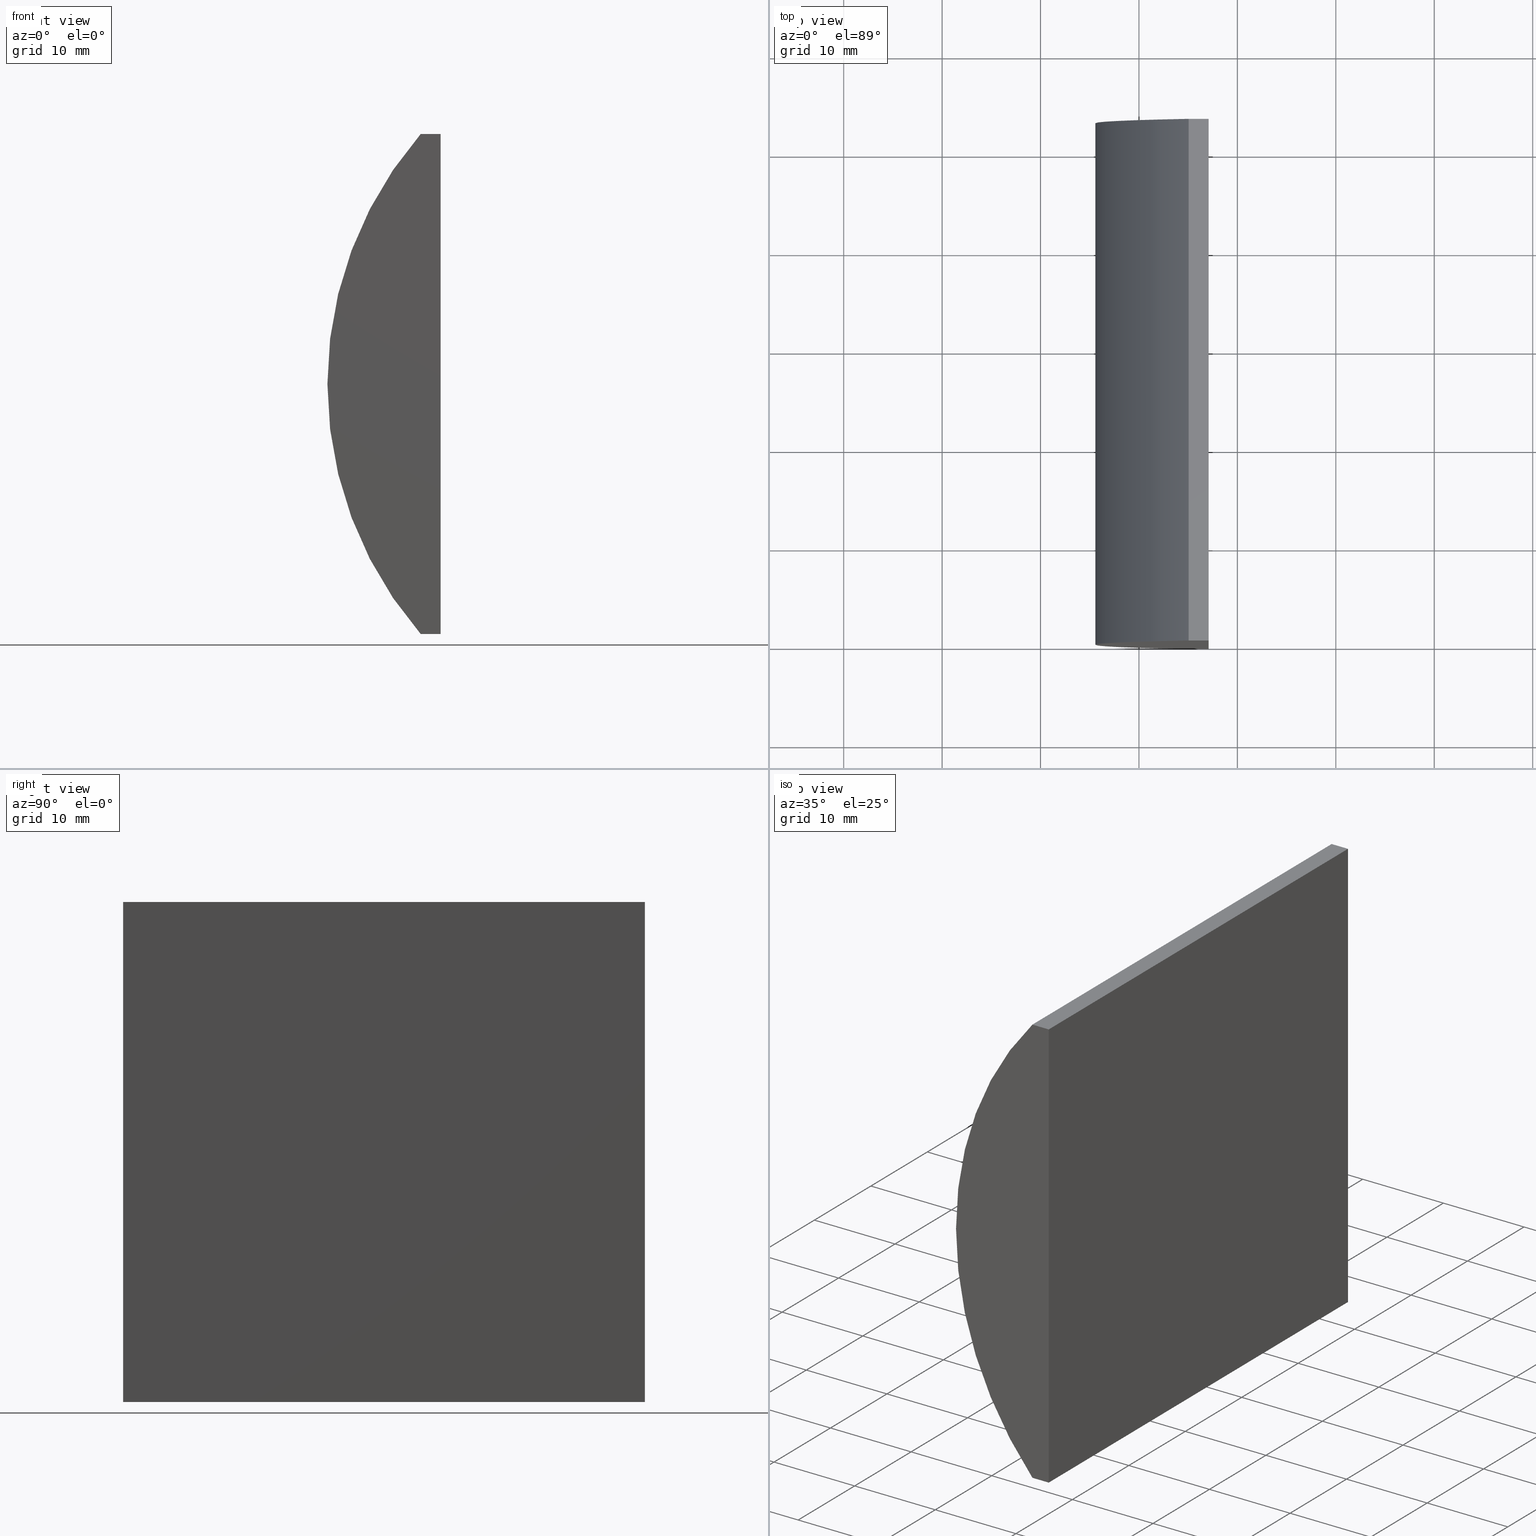
[diagram: canonical four-view strip — front | top / right | iso, engineering-drawing reading convention]
A machine part, canonical four-view strip (front | top / right | iso — engineering-drawing reading convention). The complete STEP part file that produces these views, byte-faithful:
ISO-10303-21;
HEADER;
FILE_DESCRIPTION (( 'STEP AP214' ),
    '1' );
FILE_NAME ('155057.STEP',
    '2019-06-18T07:23:28',
    ( 'user' ),
    ( '΢���й�' ),
    'SwSTEP 2.0',
    'SolidWorks 2016',
    '' );
FILE_SCHEMA (( 'AUTOMOTIVE_DESIGN' ));
ENDSEC;

DATA;
#1 = CARTESIAN_POINT ( 'NONE',  ( 4.355204334851265500, 53.00000000000000000, 4.286263797015675000E-017 ) ) ;
#2 = VECTOR ( 'NONE', #8, 1000.000000000000000 ) ;
#3 = ORIENTED_EDGE ( 'NONE', *, *, #160, .T. ) ;
#4 = VERTEX_POINT ( 'NONE', #166 ) ;
#5 = EDGE_CURVE ( 'NONE', #62, #157, #69, .T. ) ;
#6 =( NAMED_UNIT ( * ) PLANE_ANGLE_UNIT ( ) SI_UNIT ( $, .RADIAN. ) );
#7 = ADVANCED_FACE ( 'NONE', ( #42 ), #33, .F. ) ;
#8 = DIRECTION ( 'NONE',  ( -0.0000000000000000000, -1.000000000000000000, -0.0000000000000000000 ) ) ;
#9 = VERTEX_POINT ( 'NONE', #32 ) ;
#10 = PRESENTATION_LAYER_ASSIGNMENT (  '', '', ( #190 ) ) ;
#11 = CARTESIAN_POINT ( 'NONE',  ( -22.92479566514874600, 53.00000000000000000, -25.39999999999999900 ) ) ;
#12 = VERTEX_POINT ( 'NONE', #38 ) ;
#13 = ORIENTED_EDGE ( 'NONE', *, *, #153, .F. ) ;
#14 = CARTESIAN_POINT ( 'NONE',  ( 4.355204334851265500, 53.00000000000000000, 4.286263797015675000E-017 ) ) ;
#15 = CARTESIAN_POINT ( 'NONE',  ( -24.94886364213786900, 53.00000000000000000, -25.39999999999999900 ) ) ;
#16 = SURFACE_SIDE_STYLE ('',( #149 ) ) ;
#17 = CARTESIAN_POINT ( 'NONE',  ( -24.94886364213786900, 53.00000000000000000, -25.39999999999999900 ) ) ;
#18 = ORIENTED_EDGE ( 'NONE', *, *, #74, .T. ) ;
#19 = AXIS2_PLACEMENT_3D ( 'NONE', #14, #112, #187 ) ;
#20 = VECTOR ( 'NONE', #200, 1000.000000000000000 ) ;
#21 = ORIENTED_EDGE ( 'NONE', *, *, #64, .T. ) ;
#22 = ADVANCED_FACE ( 'NONE', ( #58 ), #141, .F. ) ;
#23 = EDGE_CURVE ( 'NONE', #12, #4, #70, .T. ) ;
#24 = STYLED_ITEM ( 'NONE', ( #132 ), #192 ) ;
#25 = VERTEX_POINT ( 'NONE', #133 ) ;
#26 = LINE ( 'NONE', #96, #186 ) ;
#27 = EDGE_CURVE ( 'NONE', #168, #174, #76, .T. ) ;
#28 = FILL_AREA_STYLE ('',( #39 ) ) ;
#29 = CARTESIAN_POINT ( 'NONE',  ( -24.94886364213786900, 53.00000000000000000, 25.39999999999999900 ) ) ;
#30 = VECTOR ( 'NONE', #164, 1000.000000000000000 ) ;
#31 = VECTOR ( 'NONE', #183, 1000.000000000000000 ) ;
#32 = CARTESIAN_POINT ( 'NONE',  ( -24.94886364213786900, 53.00000000000000000, 25.39999999999999900 ) ) ;
#33 = PLANE ( 'NONE',  #51 ) ;
#34 = DIRECTION ( 'NONE',  ( 1.000000000000000000, 0.0000000000000000000, -0.0000000000000000000 ) ) ;
#35 = EDGE_LOOP ( 'NONE', ( #18, #177, #201, #21 ) ) ;
#36 = PLANE ( 'NONE',  #19 ) ;
#37 = APPLICATION_PROTOCOL_DEFINITION ( 'draft international standard', 'automotive_design', 1998, #182 ) ;
#38 = CARTESIAN_POINT ( 'NONE',  ( -22.92479566514873200, 53.00000000000000000, 25.39999999999999900 ) ) ;
#39 = FILL_AREA_STYLE_COLOUR ( '', #67 ) ;
#40 = SHAPE_DEFINITION_REPRESENTATION ( #158, #192 ) ;
#41 = CARTESIAN_POINT ( 'NONE',  ( -24.94886364213786900, 0.0000000000000000000, -25.39999999999999900 ) ) ;
#42 = FACE_OUTER_BOUND ( 'NONE', #66, .T. ) ;
#43 = DIRECTION ( 'NONE',  ( -1.000000000000000000, -0.0000000000000000000, -0.0000000000000000000 ) ) ;
#44 = DIRECTION ( 'NONE',  ( 2.731847993664263200E-016, 0.0000000000000000000, 1.000000000000000000 ) ) ;
#45 = SURFACE_SIDE_STYLE ('',( #142 ) ) ;
#46 = CARTESIAN_POINT ( 'NONE',  ( 4.355204334851265500, 0.0000000000000000000, 4.286263797015675000E-017 ) ) ;
#47 = CARTESIAN_POINT ( 'NONE',  ( -24.94886364213786900, 53.00000000000000000, 25.39999999999999900 ) ) ;
#48 = ORIENTED_EDGE ( 'NONE', *, *, #81, .F. ) ;
#49 = AXIS2_PLACEMENT_3D ( 'NONE', #17, #52, #34 ) ;
#50 = FILL_AREA_STYLE ('',( #109 ) ) ;
#51 = AXIS2_PLACEMENT_3D ( 'NONE', #184, #127, #179 ) ;
#52 = DIRECTION ( 'NONE',  ( 0.0000000000000000000, 0.0000000000000000000, 1.000000000000000000 ) ) ;
#53 = CARTESIAN_POINT ( 'NONE',  ( -24.94886364213786900, 0.0000000000000000000, 25.39999999999999900 ) ) ;
#54 = LINE ( 'NONE', #185, #31 ) ;
#55 = ORIENTED_EDGE ( 'NONE', *, *, #64, .F. ) ;
#56 = UNCERTAINTY_MEASURE_WITH_UNIT (LENGTH_MEASURE( 1.000000000000000100E-005 ), #162, 'distance_accuracy_value', 'NONE');
#57 = EDGE_LOOP ( 'NONE', ( #59, #138, #147, #125 ) ) ;
#58 = FACE_OUTER_BOUND ( 'NONE', #35, .T. ) ;
#59 = ORIENTED_EDGE ( 'NONE', *, *, #106, .T. ) ;
#60 = EDGE_LOOP ( 'NONE', ( #3, #159, #61, #188 ) ) ;
#61 = ORIENTED_EDGE ( 'NONE', *, *, #136, .F. ) ;
#62 = VERTEX_POINT ( 'NONE', #80 ) ;
#63 = VECTOR ( 'NONE', #115, 1000.000000000000000 ) ;
#64 = EDGE_CURVE ( 'NONE', #9, #174, #88, .T. ) ;
#65 = LINE ( 'NONE', #148, #92 ) ;
#66 = EDGE_LOOP ( 'NONE', ( #129, #48, #139, #198 ) ) ;
#67 = COLOUR_RGB ( '',1.000000000000000000, 1.000000000000000000, 1.000000000000000000 ) ;
#68 = ORIENTED_EDGE ( 'NONE', *, *, #27, .T. ) ;
#69 = LINE ( 'NONE', #71, #20 ) ;
#70 = LINE ( 'NONE', #108, #63 ) ;
#71 = CARTESIAN_POINT ( 'NONE',  ( -24.94886364213786900, 53.00000000000000000, -25.39999999999999900 ) ) ;
#72 =( NAMED_UNIT ( * ) PLANE_ANGLE_UNIT ( ) SI_UNIT ( $, .RADIAN. ) );
#73 = VECTOR ( 'NONE', #85, 1000.000000000000000 ) ;
#74 = EDGE_CURVE ( 'NONE', #174, #4, #54, .T. ) ;
#75 = PRESENTATION_LAYER_ASSIGNMENT (  '', '', ( #24 ) ) ;
#76 = CIRCLE ( 'NONE', #176, 38.78000000000000100 ) ;
#77 = PRODUCT_DEFINITION_FORMATION_WITH_SPECIFIED_SOURCE ( '�κ�', '', #155, .NOT_KNOWN. ) ;
#78 = UNCERTAINTY_MEASURE_WITH_UNIT (LENGTH_MEASURE( 1.000000000000000100E-005 ), #126, 'distance_accuracy_value', 'NONE');
#79 =( NAMED_UNIT ( * ) SI_UNIT ( $, .STERADIAN. ) SOLID_ANGLE_UNIT ( ) );
#80 = CARTESIAN_POINT ( 'NONE',  ( -22.92479566514874600, 53.00000000000000000, -25.39999999999999900 ) ) ;
#81 = EDGE_CURVE ( 'NONE', #25, #168, #65, .T. ) ;
#82 = DIRECTION ( 'NONE',  ( -0.0000000000000000000, -1.000000000000000000, -0.0000000000000000000 ) ) ;
#83 = EDGE_LOOP ( 'NONE', ( #175, #13, #194, #87 ) ) ;
#84 = CARTESIAN_POINT ( 'NONE',  ( -24.94886364213786900, 53.00000000000000000, -25.39999999999999900 ) ) ;
#85 = DIRECTION ( 'NONE',  ( 1.000000000000000000, 0.0000000000000000000, 0.0000000000000000000 ) ) ;
#86 = PLANE ( 'NONE',  #204 ) ;
#87 = ORIENTED_EDGE ( 'NONE', *, *, #120, .T. ) ;
#88 = LINE ( 'NONE', #29, #30 ) ;
#89 = VECTOR ( 'NONE', #140, 1000.000000000000000 ) ;
#90 =( GEOMETRIC_REPRESENTATION_CONTEXT ( 3 ) GLOBAL_UNCERTAINTY_ASSIGNED_CONTEXT ( ( #56 ) ) GLOBAL_UNIT_ASSIGNED_CONTEXT ( ( #162, #102, #203 ) ) REPRESENTATION_CONTEXT ( 'NONE', 'WORKASPACE' ) );
#91 = CYLINDRICAL_SURFACE ( 'NONE', #170, 38.78000000000000100 ) ;
#92 = VECTOR ( 'NONE', #43, 1000.000000000000000 ) ;
#93 = ADVANCED_FACE ( 'NONE', ( #172 ), #91, .T. ) ;
#94 = DIRECTION ( 'NONE',  ( -2.731847993664263200E-016, -0.0000000000000000000, -1.000000000000000000 ) ) ;
#95 = APPLICATION_CONTEXT ( 'automotive_design' ) ;
#96 = CARTESIAN_POINT ( 'NONE',  ( -22.92479566514874600, 0.0000000000000000000, -25.39999999999999900 ) ) ;
#97 = CLOSED_SHELL ( 'NONE', ( #93, #22, #181, #144, #165, #7 ) ) ;
#98 = APPLICATION_PROTOCOL_DEFINITION ( 'draft international standard', 'automotive_design', 1998, #95 ) ;
#99 = CARTESIAN_POINT ( 'NONE',  ( 0.0000000000000000000, 0.0000000000000000000, 0.0000000000000000000 ) ) ;
#100 = DIRECTION ( 'NONE',  ( 0.0000000000000000000, 1.000000000000000000, 0.0000000000000000000 ) ) ;
#101 = DIRECTION ( 'NONE',  ( -1.000000000000000000, 0.0000000000000000000, -0.0000000000000000000 ) ) ;
#102 =( NAMED_UNIT ( * ) PLANE_ANGLE_UNIT ( ) SI_UNIT ( $, .RADIAN. ) );
#103 = CIRCLE ( 'NONE', #117, 38.78000000000000100 ) ;
#104 = EDGE_CURVE ( 'NONE', #9, #12, #105, .T. ) ;
#105 = LINE ( 'NONE', #47, #73 ) ;
#106 = EDGE_CURVE ( 'NONE', #157, #9, #103, .T. ) ;
#107 = PRODUCT_RELATED_PRODUCT_CATEGORY ( 'part', '', ( #155 ) ) ;
#108 = CARTESIAN_POINT ( 'NONE',  ( -22.92479566514873200, 53.00000000000000000, 25.39999999999999900 ) ) ;
#109 = FILL_AREA_STYLE_COLOUR ( '', #197 ) ;
#110 = DIRECTION ( 'NONE',  ( 0.0000000000000000000, 0.0000000000000000000, 1.000000000000000000 ) ) ;
#111 = CARTESIAN_POINT ( 'NONE',  ( -22.92479566514874600, 53.00000000000000000, -25.39999999999999900 ) ) ;
#112 = DIRECTION ( 'NONE',  ( 0.0000000000000000000, 1.000000000000000000, 0.0000000000000000000 ) ) ;
#113 = SURFACE_STYLE_USAGE ( .BOTH. , #45 ) ;
#114 =( LENGTH_UNIT ( ) NAMED_UNIT ( * ) SI_UNIT ( .MILLI., .METRE. ) );
#115 = DIRECTION ( 'NONE',  ( -0.0000000000000000000, -1.000000000000000000, -0.0000000000000000000 ) ) ;
#116 = CARTESIAN_POINT ( 'NONE',  ( -24.94886364213786900, 53.00000000000000000, 25.39999999999999900 ) ) ;
#117 = AXIS2_PLACEMENT_3D ( 'NONE', #1, #161, #167 ) ;
#118 = MECHANICAL_DESIGN_GEOMETRIC_PRESENTATION_REPRESENTATION (  '', ( #24 ), #90 ) ;
#119 = LINE ( 'NONE', #111, #89 ) ;
#120 = EDGE_CURVE ( 'NONE', #62, #25, #119, .T. ) ;
#121 = PRODUCT_DEFINITION_CONTEXT ( 'detailed design', #95, 'design' ) ;
#122 = PRODUCT_CONTEXT ( 'NONE', #182, 'mechanical' ) ;
#123 = DIRECTION ( 'NONE',  ( 1.000000000000000000, 0.0000000000000000000, 0.0000000000000000000 ) ) ;
#124 = PLANE ( 'NONE',  #49 ) ;
#125 = ORIENTED_EDGE ( 'NONE', *, *, #5, .T. ) ;
#126 =( LENGTH_UNIT ( ) NAMED_UNIT ( * ) SI_UNIT ( .MILLI., .METRE. ) );
#127 = DIRECTION ( 'NONE',  ( 0.0000000000000000000, 1.000000000000000000, 0.0000000000000000000 ) ) ;
#128 = FACE_OUTER_BOUND ( 'NONE', #83, .T. ) ;
#129 = ORIENTED_EDGE ( 'NONE', *, *, #27, .F. ) ;
#130 =( NAMED_UNIT ( * ) SI_UNIT ( $, .STERADIAN. ) SOLID_ANGLE_UNIT ( ) );
#131 = VECTOR ( 'NONE', #94, 1000.000000000000000 ) ;
#132 = PRESENTATION_STYLE_ASSIGNMENT (( #113 ) ) ;
#133 = CARTESIAN_POINT ( 'NONE',  ( -22.92479566514874600, 0.0000000000000000000, -25.39999999999999900 ) ) ;
#134 = AXIS2_PLACEMENT_3D ( 'NONE', #116, #163, #101 ) ;
#135 = MANIFOLD_SOLID_BREP ( '͹̨-����1', #97 ) ;
#136 = EDGE_CURVE ( 'NONE', #12, #62, #152, .T. ) ;
#137 = LINE ( 'NONE', #84, #2 ) ;
#138 = ORIENTED_EDGE ( 'NONE', *, *, #104, .T. ) ;
#139 = ORIENTED_EDGE ( 'NONE', *, *, #160, .F. ) ;
#140 = DIRECTION ( 'NONE',  ( -0.0000000000000000000, -1.000000000000000000, -0.0000000000000000000 ) ) ;
#141 = PLANE ( 'NONE',  #134 ) ;
#142 = SURFACE_STYLE_FILL_AREA ( #50 ) ;
#143 = ORIENTED_EDGE ( 'NONE', *, *, #106, .F. ) ;
#144 = ADVANCED_FACE ( 'NONE', ( #128 ), #124, .F. ) ;
#145 = FACE_OUTER_BOUND ( 'NONE', #57, .T. ) ;
#146 = DIRECTION ( 'NONE',  ( -2.731847993664263200E-016, -0.0000000000000000000, -1.000000000000000000 ) ) ;
#147 = ORIENTED_EDGE ( 'NONE', *, *, #136, .T. ) ;
#148 = CARTESIAN_POINT ( 'NONE',  ( -24.94886364213786900, 0.0000000000000000000, -25.39999999999999900 ) ) ;
#149 = SURFACE_STYLE_FILL_AREA ( #28 ) ;
#150 = FACE_OUTER_BOUND ( 'NONE', #60, .T. ) ;
#151 = DIRECTION ( 'NONE',  ( 0.0000000000000000000, 0.0000000000000000000, -1.000000000000000000 ) ) ;
#152 = LINE ( 'NONE', #11, #131 ) ;
#153 = EDGE_CURVE ( 'NONE', #157, #168, #137, .T. ) ;
#154 = MECHANICAL_DESIGN_GEOMETRIC_PRESENTATION_REPRESENTATION (  '', ( #190 ), #193 ) ;
#155 = PRODUCT ( '155057', '155057', '', ( #122 ) ) ;
#156 = PRESENTATION_STYLE_ASSIGNMENT (( #171 ) ) ;
#157 = VERTEX_POINT ( 'NONE', #15 ) ;
#158 = PRODUCT_DEFINITION_SHAPE ( 'NONE', 'NONE',  #191 ) ;
#159 = ORIENTED_EDGE ( 'NONE', *, *, #120, .F. ) ;
#160 = EDGE_CURVE ( 'NONE', #4, #25, #26, .T. ) ;
#161 = DIRECTION ( 'NONE',  ( 0.0000000000000000000, 1.000000000000000000, 0.0000000000000000000 ) ) ;
#162 =( LENGTH_UNIT ( ) NAMED_UNIT ( * ) SI_UNIT ( .MILLI., .METRE. ) );
#163 = DIRECTION ( 'NONE',  ( 0.0000000000000000000, 0.0000000000000000000, -1.000000000000000000 ) ) ;
#164 = DIRECTION ( 'NONE',  ( -0.0000000000000000000, -1.000000000000000000, -0.0000000000000000000 ) ) ;
#165 = ADVANCED_FACE ( 'NONE', ( #145 ), #36, .T. ) ;
#166 = CARTESIAN_POINT ( 'NONE',  ( -22.92479566514873200, 0.0000000000000000000, 25.39999999999999900 ) ) ;
#167 = DIRECTION ( 'NONE',  ( 0.0000000000000000000, 0.0000000000000000000, 1.000000000000000000 ) ) ;
#168 = VERTEX_POINT ( 'NONE', #41 ) ;
#169 = CARTESIAN_POINT ( 'NONE',  ( -22.92479566514874600, 53.00000000000000000, -25.39999999999999900 ) ) ;
#170 = AXIS2_PLACEMENT_3D ( 'NONE', #196, #82, #151 ) ;
#171 = SURFACE_STYLE_USAGE ( .BOTH. , #16 ) ;
#172 = FACE_OUTER_BOUND ( 'NONE', #189, .T. ) ;
#173 =( GEOMETRIC_REPRESENTATION_CONTEXT ( 3 ) GLOBAL_UNCERTAINTY_ASSIGNED_CONTEXT ( ( #195 ) ) GLOBAL_UNIT_ASSIGNED_CONTEXT ( ( #114, #6, #130 ) ) REPRESENTATION_CONTEXT ( 'NONE', 'WORKASPACE' ) );
#174 = VERTEX_POINT ( 'NONE', #53 ) ;
#175 = ORIENTED_EDGE ( 'NONE', *, *, #81, .T. ) ;
#176 = AXIS2_PLACEMENT_3D ( 'NONE', #46, #100, #202 ) ;
#177 = ORIENTED_EDGE ( 'NONE', *, *, #23, .F. ) ;
#178 = ORIENTED_EDGE ( 'NONE', *, *, #153, .T. ) ;
#179 = DIRECTION ( 'NONE',  ( 0.0000000000000000000, -0.0000000000000000000, 1.000000000000000000 ) ) ;
#180 = DIRECTION ( 'NONE',  ( -1.000000000000000000, 0.0000000000000000000, 2.731847993664263200E-016 ) ) ;
#181 = ADVANCED_FACE ( 'NONE', ( #150 ), #86, .F. ) ;
#182 = APPLICATION_CONTEXT ( 'automotive_design' ) ;
#183 = DIRECTION ( 'NONE',  ( 1.000000000000000000, 0.0000000000000000000, 0.0000000000000000000 ) ) ;
#184 = CARTESIAN_POINT ( 'NONE',  ( 4.355204334851265500, 0.0000000000000000000, 4.286263797015675000E-017 ) ) ;
#185 = CARTESIAN_POINT ( 'NONE',  ( -24.94886364213786900, 0.0000000000000000000, 25.39999999999999900 ) ) ;
#186 = VECTOR ( 'NONE', #146, 1000.000000000000000 ) ;
#187 = DIRECTION ( 'NONE',  ( 0.0000000000000000000, -0.0000000000000000000, 1.000000000000000000 ) ) ;
#188 = ORIENTED_EDGE ( 'NONE', *, *, #23, .T. ) ;
#189 = EDGE_LOOP ( 'NONE', ( #68, #55, #143, #178 ) ) ;
#190 = STYLED_ITEM ( 'NONE', ( #156 ), #135 ) ;
#191 = PRODUCT_DEFINITION ( 'δ֪', '', #77, #121 ) ;
#192 = ADVANCED_BREP_SHAPE_REPRESENTATION ( '155057', ( #135, #199 ), #173 ) ;
#193 =( GEOMETRIC_REPRESENTATION_CONTEXT ( 3 ) GLOBAL_UNCERTAINTY_ASSIGNED_CONTEXT ( ( #78 ) ) GLOBAL_UNIT_ASSIGNED_CONTEXT ( ( #126, #72, #79 ) ) REPRESENTATION_CONTEXT ( 'NONE', 'WORKASPACE' ) );
#194 = ORIENTED_EDGE ( 'NONE', *, *, #5, .F. ) ;
#195 = UNCERTAINTY_MEASURE_WITH_UNIT (LENGTH_MEASURE( 1.000000000000000100E-005 ), #114, 'distance_accuracy_value', 'NONE');
#196 = CARTESIAN_POINT ( 'NONE',  ( 4.355204334851265500, 53.00000000000000000, 4.286263797015675000E-017 ) ) ;
#197 = COLOUR_RGB ( '',1.000000000000000000, 1.000000000000000000, 1.000000000000000000 ) ;
#198 = ORIENTED_EDGE ( 'NONE', *, *, #74, .F. ) ;
#199 = AXIS2_PLACEMENT_3D ( 'NONE', #99, #110, #123 ) ;
#200 = DIRECTION ( 'NONE',  ( -1.000000000000000000, -0.0000000000000000000, -0.0000000000000000000 ) ) ;
#201 = ORIENTED_EDGE ( 'NONE', *, *, #104, .F. ) ;
#202 = DIRECTION ( 'NONE',  ( 0.0000000000000000000, 0.0000000000000000000, 1.000000000000000000 ) ) ;
#203 =( NAMED_UNIT ( * ) SI_UNIT ( $, .STERADIAN. ) SOLID_ANGLE_UNIT ( ) );
#204 = AXIS2_PLACEMENT_3D ( 'NONE', #169, #180, #44 ) ;
ENDSEC;
END-ISO-10303-21;
